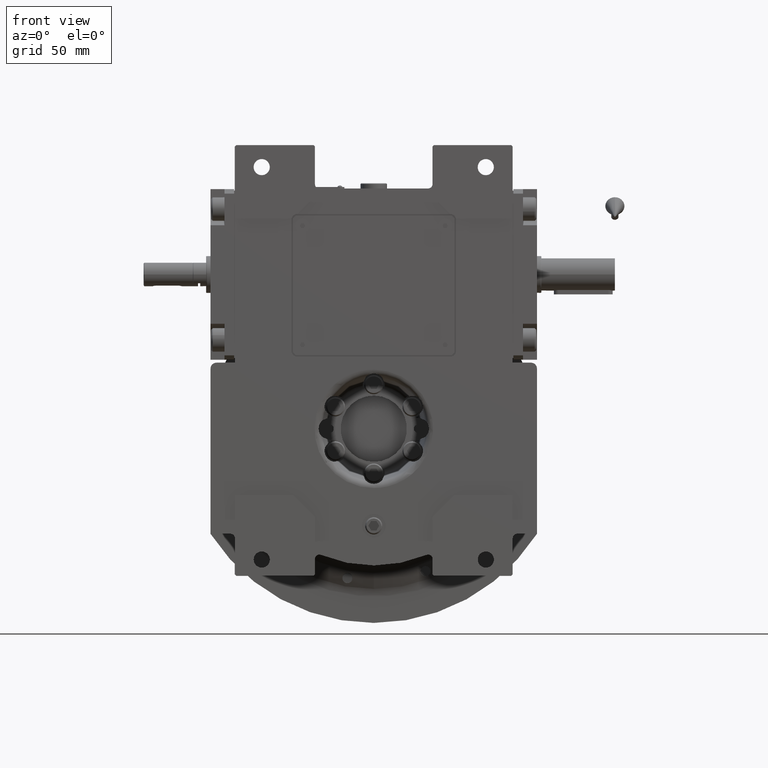
[diagram: clean part render]
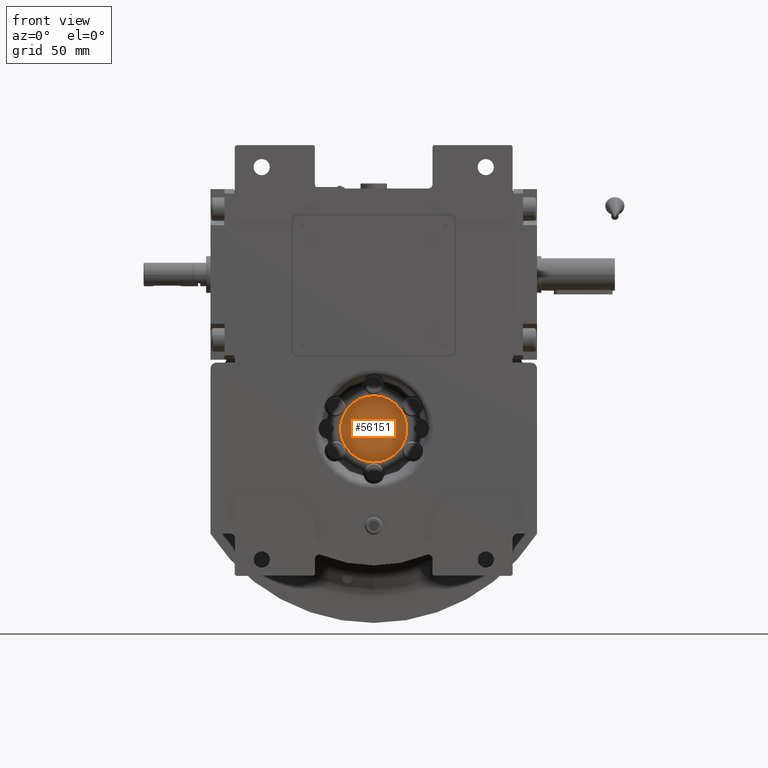
[diagram: same view with one face highlighted and labeled with its STEP entity id]
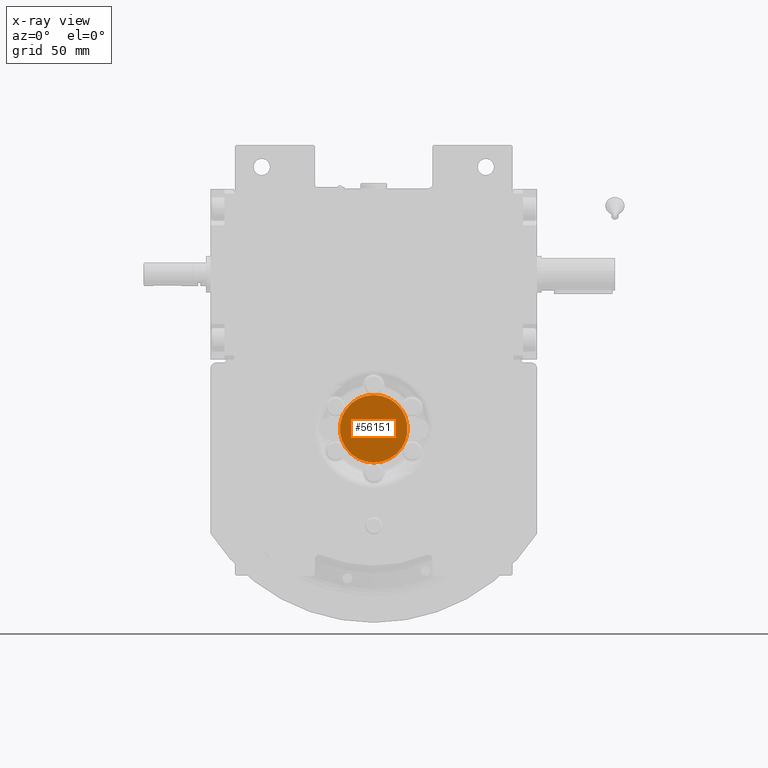
[diagram: x-ray of the same camera — body ghosted, the highlighted face saturated]
A machine part, front view. The second image highlights one B-rep face of the part: STEP entity #56151.
The next image is the same camera in x-ray: the body ghosted, the highlighted face saturated — about 0% of this face is hidden behind the body in this view.
In plain terms, the highlighted planar face has unit normal (0, -1, 0).
Its self-contained STEP definition (entity closure, byte-faithful):
#176 = DIRECTION ( 'NONE',  ( 1.000000000000000000, 0.000000000000000000, 0.000000000000000000 ) ) ;
#638 = CARTESIAN_POINT ( 'NONE',  ( 0.000000000000000000, 6.288372600415925717E-15, 9.999999999999994671 ) ) ;
#1558 = PLANE ( 'NONE',  #43973 ) ;
#1947 = CIRCLE ( 'NONE', #7431, 23.00000000000000000 ) ;
#2730 = VERTEX_POINT ( 'NONE', #46246 ) ;
#5405 = ORIENTED_EDGE ( 'NONE', *, *, #52757, .F. ) ;
#7431 = AXIS2_PLACEMENT_3D ( 'NONE', #23566, #38040, #17368 ) ;
#17368 = DIRECTION ( 'NONE',  ( 1.000000000000000000, 0.000000000000000000, 0.000000000000000000 ) ) ;
#20530 = CARTESIAN_POINT ( 'NONE',  ( 23.00000000000000000, 3.471684962377035059E-15, 9.999999999999994671 ) ) ;
#23566 = CARTESIAN_POINT ( 'NONE',  ( 0.000000000000000000, 6.288372600415925717E-15, 9.999999999999994671 ) ) ;
#36998 = DIRECTION ( 'NONE',  ( 0.000000000000000000, 0.000000000000000000, 1.000000000000000000 ) ) ;
#37327 = CARTESIAN_POINT ( 'NONE',  ( 0.000000000000000000, 0.000000000000000000, 9.999999999999994671 ) ) ;
#38040 = DIRECTION ( 'NONE',  ( 1.001483571093491676E-32, 0.000000000000000000, -1.000000000000000000 ) ) ;
#41736 = EDGE_CURVE ( 'NONE', #53923, #2730, #52949, .T. ) ;
#43973 = AXIS2_PLACEMENT_3D ( 'NONE', #37327, #36998, #176 ) ;
#44175 = AXIS2_PLACEMENT_3D ( 'NONE', #638, #48805, #58786 ) ;
#46246 = CARTESIAN_POINT ( 'NONE',  ( -23.00000000000000000, 6.288372600415925717E-15, 9.999999999999994671 ) ) ;
#48678 = FACE_OUTER_BOUND ( 'NONE', #54071, .T. ) ;
#48805 = DIRECTION ( 'NONE',  ( 1.001483571093491676E-32, 0.000000000000000000, -1.000000000000000000 ) ) ;
#52757 = EDGE_CURVE ( 'NONE', #2730, #53923, #1947, .T. ) ;
#52949 = CIRCLE ( 'NONE', #44175, 23.00000000000000000 ) ;
#53923 = VERTEX_POINT ( 'NONE', #20530 ) ;
#54071 = EDGE_LOOP ( 'NONE', ( #5405, #66426 ) ) ;
#56151 = ADVANCED_FACE ( 'NONE', ( #48678 ), #1558, .T. ) ;
#58786 = DIRECTION ( 'NONE',  ( 1.000000000000000000, 0.000000000000000000, 0.000000000000000000 ) ) ;
#66426 = ORIENTED_EDGE ( 'NONE', *, *, #41736, .F. ) ;